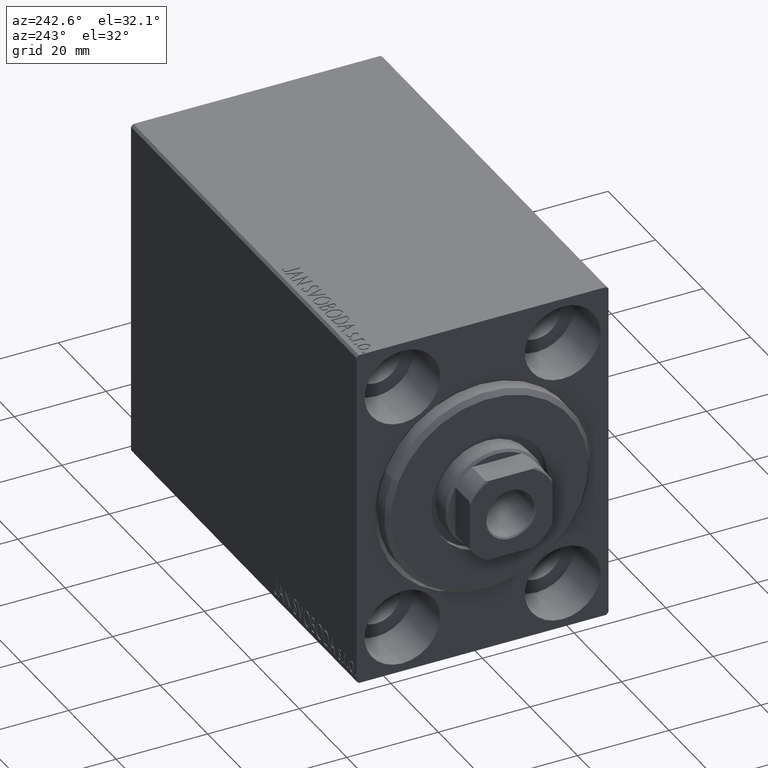
[diagram: clean part render]
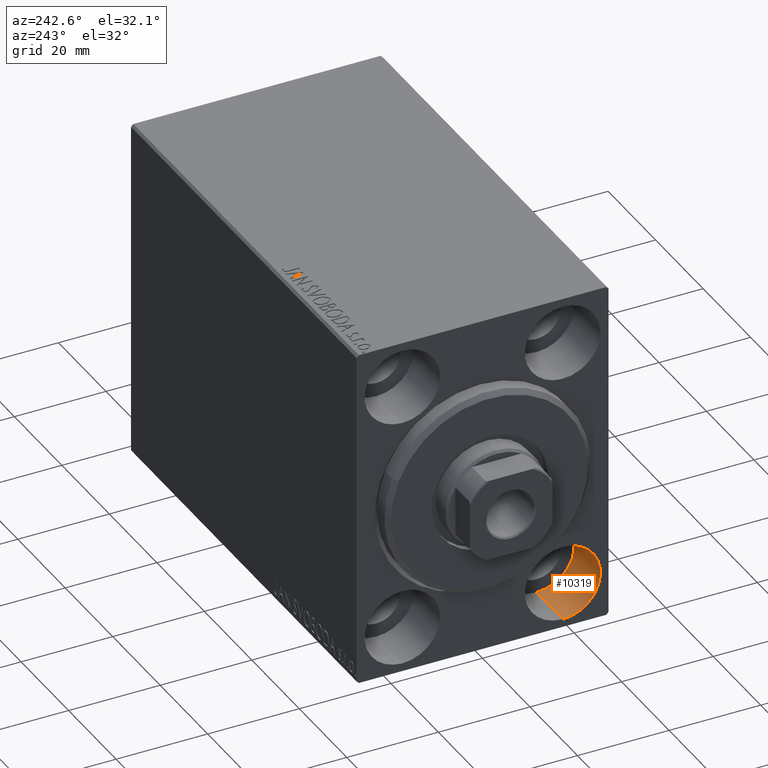
[diagram: same view with one face highlighted and labeled with its STEP entity id]
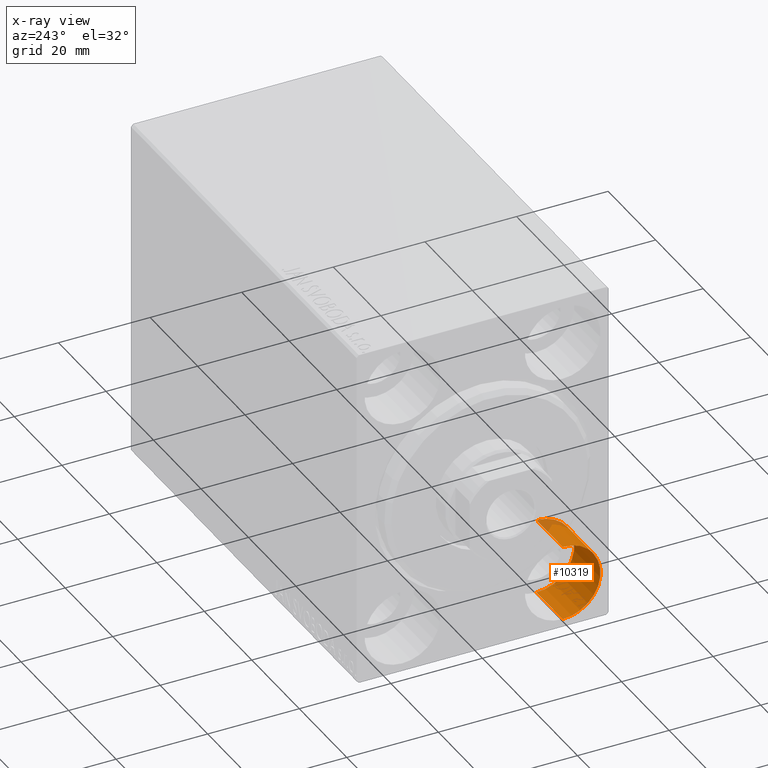
[diagram: x-ray of the same camera — body ghosted, the highlighted face saturated]
A machine part, auxiliary view. The second image highlights one B-rep face of the part: STEP entity #10319.
The next image is the same camera in x-ray: the body ghosted, the highlighted face saturated — about 6% of this face is hidden behind the body in this view.
In plain terms, the highlighted cylindrical surface (partial cylindrical patch) has radius 8.25 mm, axis along (-1, -0, -0).
Its self-contained STEP definition (entity closure, byte-faithful):
#1754 = CARTESIAN_POINT ( 'NONE',  ( 0.000000000000000000, -17.50000000000000355, -19.25000000000000355 ) ) ;
#1832 = DIRECTION ( 'NONE',  ( -1.000000000000000000, -0.000000000000000000, -0.000000000000000000 ) ) ;
#1892 = DIRECTION ( 'NONE',  ( -1.000000000000000000, -0.000000000000000000, -0.000000000000000000 ) ) ;
#2103 = FACE_OUTER_BOUND ( 'NONE', #3478, .T. ) ;
#3040 = CARTESIAN_POINT ( 'NONE',  ( 0.000000000000000000, -17.50000000000000355, -35.75000000000000711 ) ) ;
#3478 = EDGE_LOOP ( 'NONE', ( #4466, #16036, #13774, #22178 ) ) ;
#4312 = CARTESIAN_POINT ( 'NONE',  ( 11.00000000000000000, -17.50000000000000355, -27.50000000000000355 ) ) ;
#4466 = ORIENTED_EDGE ( 'NONE', *, *, #10111, .F. ) ;
#5164 = EDGE_CURVE ( 'NONE', #8004, #13108, #38633, .T. ) ;
#6761 = VERTEX_POINT ( 'NONE', #3040 ) ;
#7357 = AXIS2_PLACEMENT_3D ( 'NONE', #28523, #1892, #15333 ) ;
#8004 = VERTEX_POINT ( 'NONE', #13146 ) ;
#9487 = AXIS2_PLACEMENT_3D ( 'NONE', #4312, #24341, #16904 ) ;
#9678 = CIRCLE ( 'NONE', #34274, 8.250000000000000000 ) ;
#10111 = EDGE_CURVE ( 'NONE', #17391, #8004, #24179, .T. ) ;
#10319 = ADVANCED_FACE ( 'NONE', ( #2103 ), #34945, .F. ) ;
#13108 = VERTEX_POINT ( 'NONE', #1754 ) ;
#13146 = CARTESIAN_POINT ( 'NONE',  ( 11.00000000000000000, -17.50000000000000355, -19.25000000000000355 ) ) ;
#13774 = ORIENTED_EDGE ( 'NONE', *, *, #23211, .T. ) ;
#14248 = VECTOR ( 'NONE', #1832, 1000.000000000000000 ) ;
#15333 = DIRECTION ( 'NONE',  ( 0.000000000000000000, 0.000000000000000000, 1.000000000000000000 ) ) ;
#16036 = ORIENTED_EDGE ( 'NONE', *, *, #36021, .T. ) ;
#16904 = DIRECTION ( 'NONE',  ( 0.000000000000000000, 0.000000000000000000, 1.000000000000000000 ) ) ;
#17391 = VERTEX_POINT ( 'NONE', #24645 ) ;
#18782 = CARTESIAN_POINT ( 'NONE',  ( 11.00000000000000000, -17.50000000000000355, -35.75000000000000711 ) ) ;
#19449 = CARTESIAN_POINT ( 'NONE',  ( 0.000000000000000000, -17.50000000000000355, -27.50000000000000355 ) ) ;
#22178 = ORIENTED_EDGE ( 'NONE', *, *, #5164, .F. ) ;
#23211 = EDGE_CURVE ( 'NONE', #6761, #13108, #9678, .T. ) ;
#24179 = CIRCLE ( 'NONE', #9487, 8.250000000000000000 ) ;
#24341 = DIRECTION ( 'NONE',  ( -1.000000000000000000, 0.000000000000000000, 0.000000000000000000 ) ) ;
#24645 = CARTESIAN_POINT ( 'NONE',  ( 11.00000000000000000, -17.50000000000000355, -35.75000000000000711 ) ) ;
#28459 = CARTESIAN_POINT ( 'NONE',  ( 11.00000000000000000, -17.50000000000000355, -19.25000000000000355 ) ) ;
#28523 = CARTESIAN_POINT ( 'NONE',  ( 11.00000000000000000, -17.50000000000000355, -27.50000000000000355 ) ) ;
#29571 = DIRECTION ( 'NONE',  ( -1.000000000000000000, 0.000000000000000000, 0.000000000000000000 ) ) ;
#34274 = AXIS2_PLACEMENT_3D ( 'NONE', #19449, #29571, #38848 ) ;
#34782 = VECTOR ( 'NONE', #38835, 1000.000000000000000 ) ;
#34945 = CYLINDRICAL_SURFACE ( 'NONE', #7357, 8.250000000000000000 ) ;
#36021 = EDGE_CURVE ( 'NONE', #17391, #6761, #41935, .T. ) ;
#38633 = LINE ( 'NONE', #28459, #14248 ) ;
#38835 = DIRECTION ( 'NONE',  ( -1.000000000000000000, -0.000000000000000000, -0.000000000000000000 ) ) ;
#38848 = DIRECTION ( 'NONE',  ( 0.000000000000000000, 0.000000000000000000, 1.000000000000000000 ) ) ;
#41935 = LINE ( 'NONE', #18782, #34782 ) ;